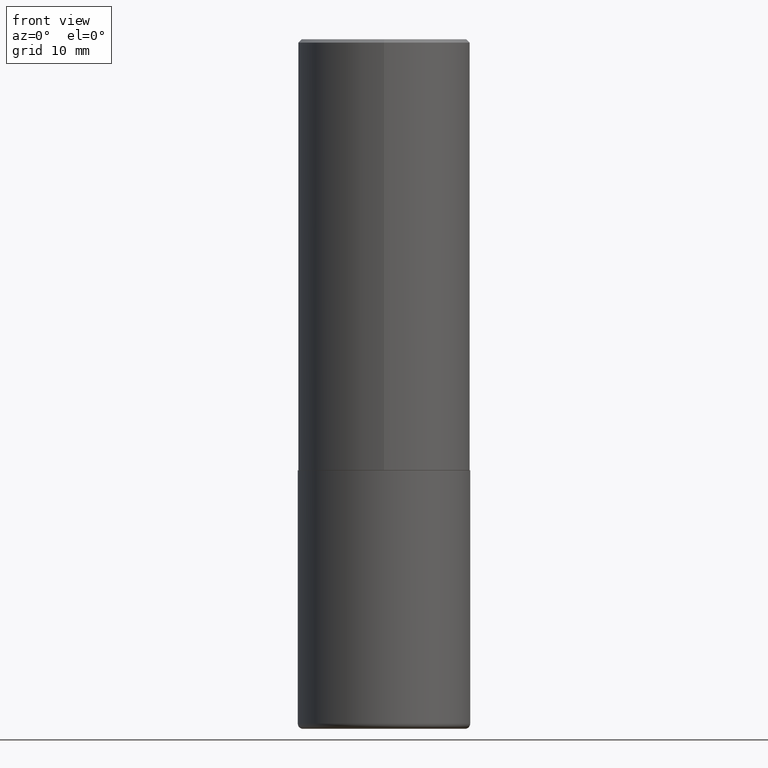
[diagram: clean part render]
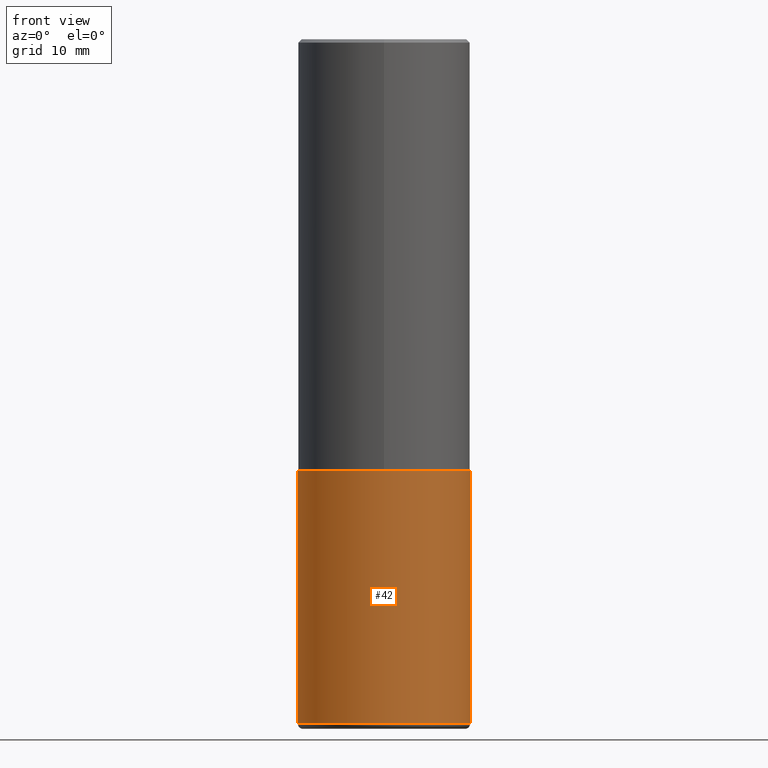
[diagram: same view with one face highlighted and labeled with its STEP entity id]
A machine part, front view. The second image highlights one B-rep face of the part: STEP entity #42.
In plain terms, the highlighted cylindrical surface (partial cylindrical patch) has radius 12.7 mm, axis along (-0, 0, 1).
Its self-contained STEP definition (entity closure, byte-faithful):
#12 = CARTESIAN_POINT ( 'NONE',  ( 6.113672015462842613E-29, -8.728703347107864943E-15, -2.500000000000000000 ) ) ;
#17 = DIRECTION ( 'NONE',  ( -2.445468806185136877E-29, 3.491481338843145188E-15, 1.000000000000000000 ) ) ;
#42 = ADVANCED_FACE ( 'NONE', ( #385 ), #64, .T. ) ;
#55 = ORIENTED_EDGE ( 'NONE', *, *, #256, .T. ) ;
#64 = CYLINDRICAL_SURFACE ( 'NONE', #261, 0.5000000000000000000 ) ;
#69 = CARTESIAN_POINT ( 'NONE',  ( -0.5000000000000000000, -7.742228452357075234E-15, -2.500000000000000000 ) ) ;
#77 = CARTESIAN_POINT ( 'NONE',  ( 0.5000000000000000000, -3.491481338843133355E-15, 2.438088387897967896E-29 ) ) ;
#85 = DIRECTION ( 'NONE',  ( 1.000000000000000000, -6.982962677686269077E-15, 0.000000000000000000 ) ) ;
#89 = LINE ( 'NONE', #349, #139 ) ;
#107 = EDGE_CURVE ( 'NONE', #250, #108, #89, .T. ) ;
#108 = VERTEX_POINT ( 'NONE', #69 ) ;
#134 = AXIS2_PLACEMENT_3D ( 'NONE', #12, #145, #85 ) ;
#139 = VECTOR ( 'NONE', #320, 39.37007874015748143 ) ;
#145 = DIRECTION ( 'NONE',  ( -2.445468806185136597E-29, 3.491481338843145583E-15, 1.000000000000000000 ) ) ;
#162 = CIRCLE ( 'NONE', #221, 0.4999999999999999445 ) ;
#173 = LINE ( 'NONE', #77, #298 ) ;
#181 = VERTEX_POINT ( 'NONE', #209 ) ;
#187 = CARTESIAN_POINT ( 'NONE',  ( 0.000000000000000000, 0.000000000000000000, 0.000000000000000000 ) ) ;
#199 = CIRCLE ( 'NONE', #134, 0.5000000000000000000 ) ;
#207 = ORIENTED_EDGE ( 'NONE', *, *, #107, .F. ) ;
#209 = CARTESIAN_POINT ( 'NONE',  ( 0.5000000000000000000, -1.222018468595099830E-14, -2.500000000000000000 ) ) ;
#221 = AXIS2_PLACEMENT_3D ( 'NONE', #339, #308, #373 ) ;
#250 = VERTEX_POINT ( 'NONE', #274 ) ;
#256 = EDGE_CURVE ( 'NONE', #406, #181, #173, .T. ) ;
#261 = AXIS2_PLACEMENT_3D ( 'NONE', #187, #287, #355 ) ;
#274 = CARTESIAN_POINT ( 'NONE',  ( -0.4999999999999999445, -1.030846723640678645E-14, -3.970000000000000195 ) ) ;
#287 = DIRECTION ( 'NONE',  ( -2.445468806185136597E-29, 3.491481338843145583E-15, 1.000000000000000000 ) ) ;
#297 = EDGE_CURVE ( 'NONE', #250, #406, #162, .T. ) ;
#298 = VECTOR ( 'NONE', #17, 39.37007874015748143 ) ;
#308 = DIRECTION ( 'NONE',  ( -2.445468806185136597E-29, 3.491481338843145583E-15, 1.000000000000000000 ) ) ;
#310 = EDGE_CURVE ( 'NONE', #108, #181, #199, .T. ) ;
#320 = DIRECTION ( 'NONE',  ( -2.445468806185136877E-29, 3.491481338843145188E-15, 1.000000000000000000 ) ) ;
#331 = ORIENTED_EDGE ( 'NONE', *, *, #297, .T. ) ;
#339 = CARTESIAN_POINT ( 'NONE',  ( 9.708511160554992872E-29, -1.386118091520728738E-14, -3.970000000000000195 ) ) ;
#346 = CARTESIAN_POINT ( 'NONE',  ( 0.4999999999999999445, -1.735266225405042074E-14, -3.970000000000000195 ) ) ;
#349 = CARTESIAN_POINT ( 'NONE',  ( -0.5000000000000000000, 3.552713678800500929E-15, -2.459467545127452891E-29 ) ) ;
#355 = DIRECTION ( 'NONE',  ( 1.000000000000000000, -6.982962677686266711E-15, 4.876176775795935793E-29 ) ) ;
#373 = DIRECTION ( 'NONE',  ( 1.000000000000000000, -6.982962677686267499E-15, 0.000000000000000000 ) ) ;
#377 = ORIENTED_EDGE ( 'NONE', *, *, #310, .F. ) ;
#385 = FACE_OUTER_BOUND ( 'NONE', #393, .T. ) ;
#393 = EDGE_LOOP ( 'NONE', ( #207, #331, #55, #377 ) ) ;
#406 = VERTEX_POINT ( 'NONE', #346 ) ;